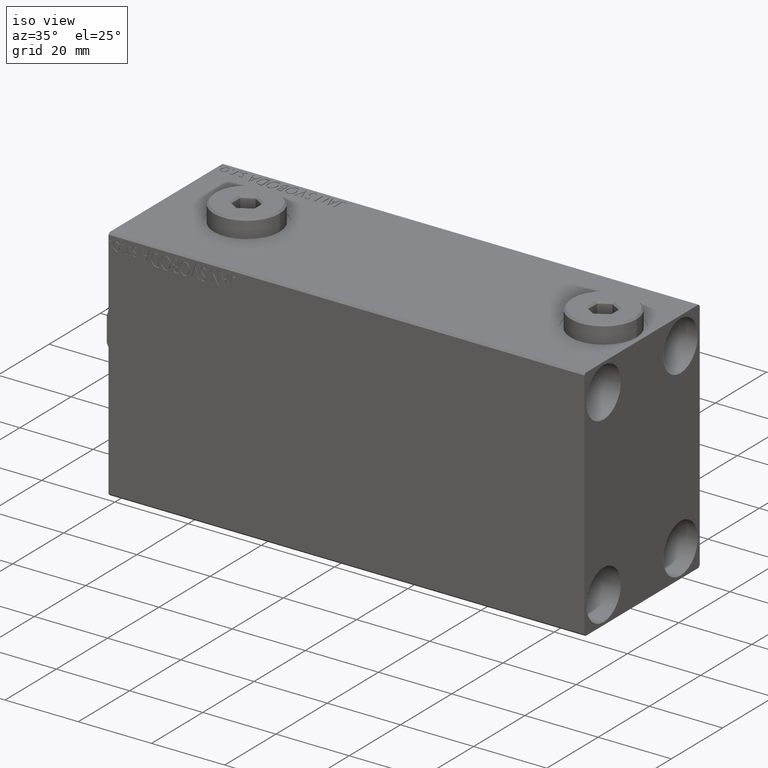
[diagram: clean part render]
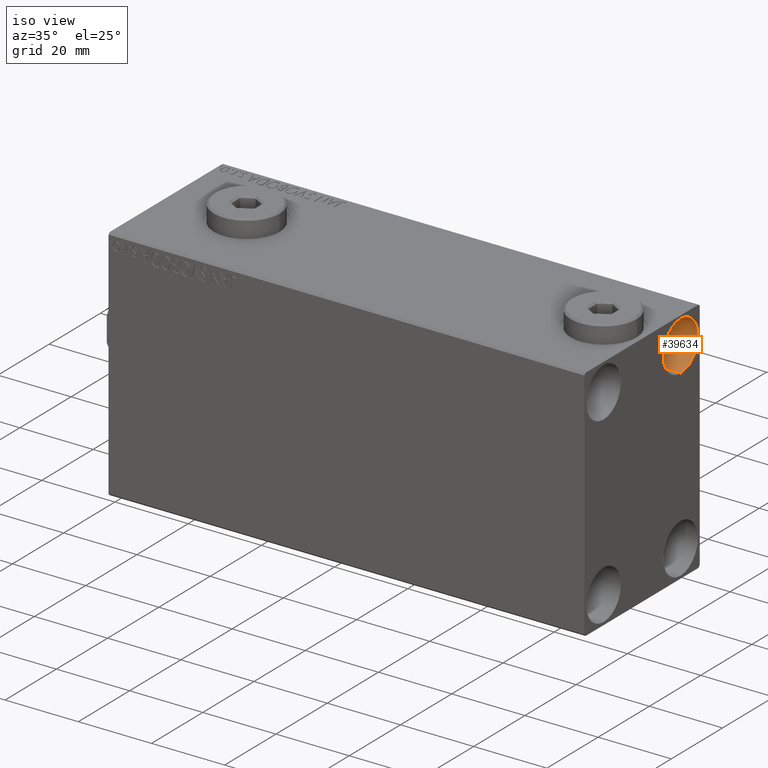
[diagram: same view with one face highlighted and labeled with its STEP entity id]
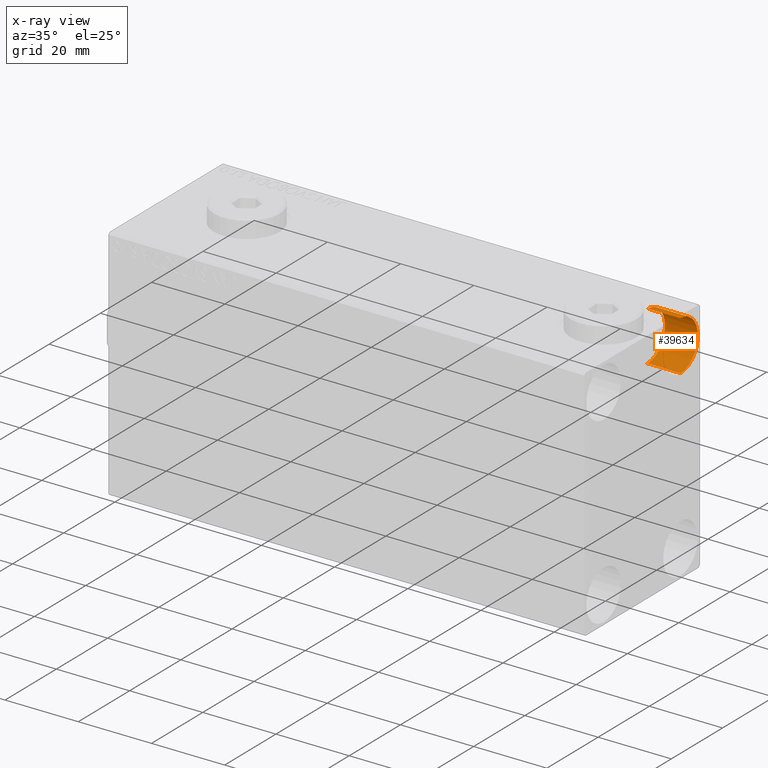
[diagram: x-ray of the same camera — body ghosted, the highlighted face saturated]
A machine part, iso view. The second image highlights one B-rep face of the part: STEP entity #39634.
The next image is the same camera in x-ray: the body ghosted, the highlighted face saturated — about 0% of this face is hidden behind the body in this view.
In plain terms, the highlighted cylindrical surface (edge-blend (fillet) strip) has radius 6.75 mm, axis along (1, 0, 0).
Its self-contained STEP definition (entity closure, byte-faithful):
#779 = CARTESIAN_POINT ( 'NONE',  ( 121.0000000000000142, 15.00000000000000355, 18.25000000000000355 ) ) ;
#2819 = EDGE_CURVE ( 'NONE', #43710, #8566, #29169, .T. ) ;
#3974 = EDGE_CURVE ( 'NONE', #36076, #38484, #39676, .T. ) ;
#5930 = EDGE_CURVE ( 'NONE', #36076, #43710, #14763, .T. ) ;
#8566 = VERTEX_POINT ( 'NONE', #23313 ) ;
#9228 = EDGE_LOOP ( 'NONE', ( #35051, #31247, #37867, #12298 ) ) ;
#12298 = ORIENTED_EDGE ( 'NONE', *, *, #34772, .F. ) ;
#12658 = CARTESIAN_POINT ( 'NONE',  ( 121.0000000000000142, 15.00000000000000355, 18.25000000000000355 ) ) ;
#13398 = DIRECTION ( 'NONE',  ( -1.000000000000000000, -0.000000000000000000, -0.000000000000000000 ) ) ;
#14763 = CIRCLE ( 'NONE', #20614, 6.749999999999999112 ) ;
#15215 = DIRECTION ( 'NONE',  ( 1.000000000000000000, -0.000000000000000000, -0.000000000000000000 ) ) ;
#17650 = FACE_OUTER_BOUND ( 'NONE', #9228, .T. ) ;
#18551 = CYLINDRICAL_SURFACE ( 'NONE', #36491, 6.749999999999999112 ) ;
#19974 = VECTOR ( 'NONE', #15215, 1000.000000000000000 ) ;
#20614 = AXIS2_PLACEMENT_3D ( 'NONE', #30212, #39586, #40047 ) ;
#23313 = CARTESIAN_POINT ( 'NONE',  ( 130.0000000000000000, 15.00000000000000355, 18.25000000000000355 ) ) ;
#23477 = CARTESIAN_POINT ( 'NONE',  ( 130.0000000000000000, 15.00000000000000355, 25.00000000000000000 ) ) ;
#24971 = DIRECTION ( 'NONE',  ( 0.000000000000000000, 0.000000000000000000, -1.000000000000000000 ) ) ;
#29169 = LINE ( 'NONE', #779, #38160 ) ;
#29402 = CARTESIAN_POINT ( 'NONE',  ( 121.0000000000000142, 15.00000000000000355, 31.75000000000000000 ) ) ;
#30212 = CARTESIAN_POINT ( 'NONE',  ( 121.0000000000000142, 15.00000000000000355, 25.00000000000000000 ) ) ;
#30342 = DIRECTION ( 'NONE',  ( 0.000000000000000000, 0.000000000000000000, 1.000000000000000000 ) ) ;
#31247 = ORIENTED_EDGE ( 'NONE', *, *, #5930, .T. ) ;
#34772 = EDGE_CURVE ( 'NONE', #38484, #8566, #40012, .T. ) ;
#34910 = AXIS2_PLACEMENT_3D ( 'NONE', #23477, #13398, #30342 ) ;
#35051 = ORIENTED_EDGE ( 'NONE', *, *, #3974, .F. ) ;
#35556 = DIRECTION ( 'NONE',  ( 1.000000000000000000, -0.000000000000000000, -0.000000000000000000 ) ) ;
#36076 = VERTEX_POINT ( 'NONE', #37358 ) ;
#36491 = AXIS2_PLACEMENT_3D ( 'NONE', #39123, #42325, #24971 ) ;
#37358 = CARTESIAN_POINT ( 'NONE',  ( 121.0000000000000142, 15.00000000000000355, 31.75000000000000000 ) ) ;
#37867 = ORIENTED_EDGE ( 'NONE', *, *, #2819, .T. ) ;
#38160 = VECTOR ( 'NONE', #35556, 1000.000000000000000 ) ;
#38484 = VERTEX_POINT ( 'NONE', #38946 ) ;
#38946 = CARTESIAN_POINT ( 'NONE',  ( 130.0000000000000000, 15.00000000000000355, 31.75000000000000000 ) ) ;
#39123 = CARTESIAN_POINT ( 'NONE',  ( 121.0000000000000142, 15.00000000000000355, 25.00000000000000000 ) ) ;
#39586 = DIRECTION ( 'NONE',  ( -1.000000000000000000, -0.000000000000000000, -0.000000000000000000 ) ) ;
#39634 = ADVANCED_FACE ( 'NONE', ( #17650 ), #18551, .F. ) ;
#39676 = LINE ( 'NONE', #29402, #19974 ) ;
#40012 = CIRCLE ( 'NONE', #34910, 6.749999999999999112 ) ;
#40047 = DIRECTION ( 'NONE',  ( 0.000000000000000000, 0.000000000000000000, 1.000000000000000000 ) ) ;
#42325 = DIRECTION ( 'NONE',  ( 1.000000000000000000, -0.000000000000000000, -0.000000000000000000 ) ) ;
#43710 = VERTEX_POINT ( 'NONE', #12658 ) ;